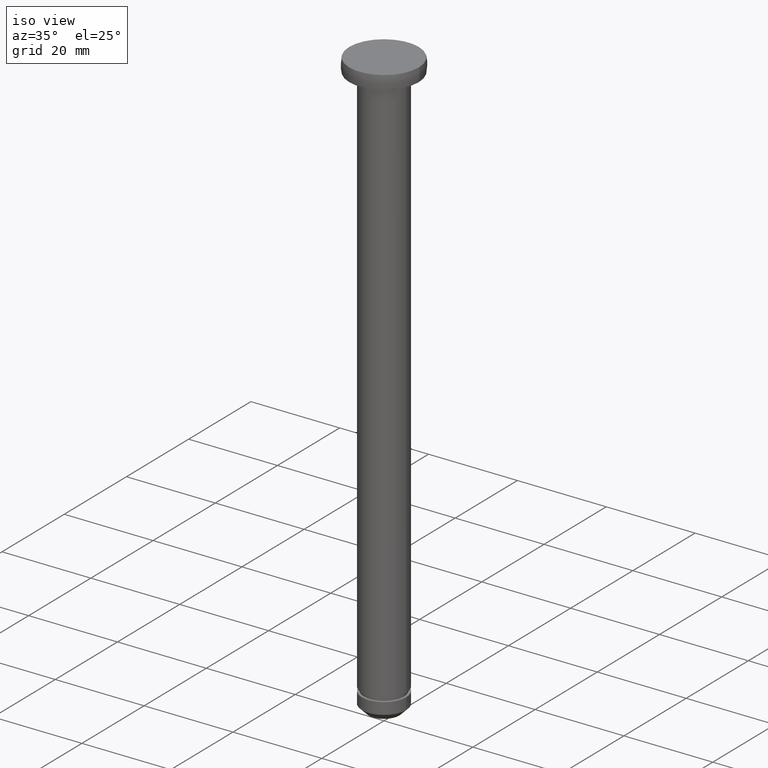
[diagram: clean part render]
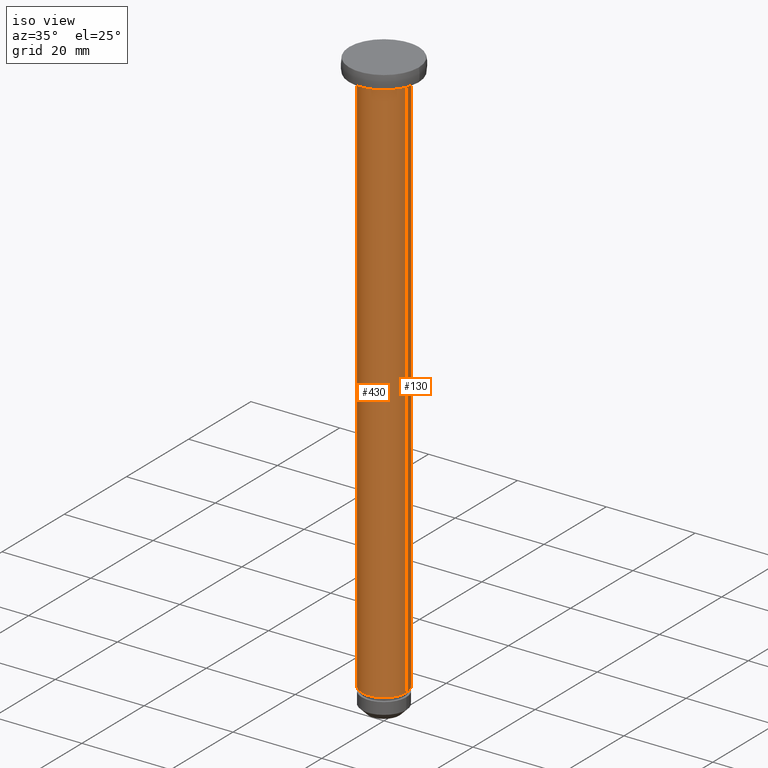
[diagram: same view with one multi-face feature highlighted, each face labeled with its STEP entity id]
A machine part, iso view. The highlighted faces form ONE feature: a constant-radius fillet chain: 2 tangent blend faces with common blend radius 5 mm. The faces share edges in the B-rep.
Their STEP definitions:
[1] entity #130 (Cylinder):
#5 = ORIENTED_EDGE ( 'NONE', *, *, #331, .T. ) ;
#10 = CARTESIAN_POINT ( 'NONE',  ( 0.0000000000000000000, 0.0000000000000000000, -3.000000018043495100 ) ) ;
#52 = DIRECTION ( 'NONE',  ( 0.0000000000000000000, 0.0000000000000000000, -1.000000000000000000 ) ) ;
#55 = CARTESIAN_POINT ( 'NONE',  ( -5.000000000000000000, 0.0000000000000000000, -128.0000000360869900 ) ) ;
#92 = CARTESIAN_POINT ( 'NONE',  ( -5.000000000000000000, 0.0000000000000000000, -3.000000018043495100 ) ) ;
#101 = LINE ( 'NONE', #158, #299 ) ;
#130 = ADVANCED_FACE ( 'NONE', ( #286 ), #360, .T. ) ;
#145 = AXIS2_PLACEMENT_3D ( 'NONE', #10, #200, #309 ) ;
#148 = CARTESIAN_POINT ( 'NONE',  ( 5.000000000000000000, 6.123233995736766300E-016, -128.0000000360869900 ) ) ;
#158 = CARTESIAN_POINT ( 'NONE',  ( 5.000000000000000000, 6.123233995736766300E-016, -3.280275378074167100E-014 ) ) ;
#180 = ORIENTED_EDGE ( 'NONE', *, *, #358, .F. ) ;
#181 = CARTESIAN_POINT ( 'NONE',  ( -5.000000000000000000, 0.0000000000000000000, -3.280275378074167100E-014 ) ) ;
#197 = DIRECTION ( 'NONE',  ( 0.0000000000000000000, 0.0000000000000000000, -1.000000000000000000 ) ) ;
#200 = DIRECTION ( 'NONE',  ( 0.0000000000000000000, 0.0000000000000000000, -1.000000000000000000 ) ) ;
#201 = VERTEX_POINT ( 'NONE', #92 ) ;
#207 = LINE ( 'NONE', #181, #341 ) ;
#212 = EDGE_CURVE ( 'NONE', #201, #246, #207, .T. ) ;
#223 = AXIS2_PLACEMENT_3D ( 'NONE', #412, #252, #388 ) ;
#236 = CARTESIAN_POINT ( 'NONE',  ( 5.000000000000000000, 6.123233995736766300E-016, -3.000000018043495100 ) ) ;
#246 = VERTEX_POINT ( 'NONE', #55 ) ;
#252 = DIRECTION ( 'NONE',  ( 0.0000000000000000000, 0.0000000000000000000, -1.000000000000000000 ) ) ;
#271 = EDGE_CURVE ( 'NONE', #353, #384, #101, .T. ) ;
#273 = DIRECTION ( 'NONE',  ( 0.0000000000000000000, 0.0000000000000000000, -1.000000000000000000 ) ) ;
#286 = FACE_OUTER_BOUND ( 'NONE', #359, .T. ) ;
#299 = VECTOR ( 'NONE', #197, 1000.000000000000000 ) ;
#309 = DIRECTION ( 'NONE',  ( -1.000000000000000000, 0.0000000000000000000, 0.0000000000000000000 ) ) ;
#317 = ORIENTED_EDGE ( 'NONE', *, *, #271, .T. ) ;
#331 = EDGE_CURVE ( 'NONE', #201, #353, #425, .T. ) ;
#341 = VECTOR ( 'NONE', #273, 1000.000000000000000 ) ;
#344 = CARTESIAN_POINT ( 'NONE',  ( 0.0000000000000000000, 0.0000000000000000000, -3.280275378074167100E-014 ) ) ;
#353 = VERTEX_POINT ( 'NONE', #236 ) ;
#358 = EDGE_CURVE ( 'NONE', #246, #384, #427, .T. ) ;
#359 = EDGE_LOOP ( 'NONE', ( #5, #317, #180, #383 ) ) ;
#360 = CYLINDRICAL_SURFACE ( 'NONE', #419, 5.000000000000000000 ) ;
#370 = DIRECTION ( 'NONE',  ( -1.000000000000000000, 0.0000000000000000000, 0.0000000000000000000 ) ) ;
#383 = ORIENTED_EDGE ( 'NONE', *, *, #212, .F. ) ;
#384 = VERTEX_POINT ( 'NONE', #148 ) ;
#388 = DIRECTION ( 'NONE',  ( -1.000000000000000000, 0.0000000000000000000, 0.0000000000000000000 ) ) ;
#412 = CARTESIAN_POINT ( 'NONE',  ( 0.0000000000000000000, 0.0000000000000000000, -128.0000000360869900 ) ) ;
#419 = AXIS2_PLACEMENT_3D ( 'NONE', #344, #52, #370 ) ;
#425 = CIRCLE ( 'NONE', #145, 5.000000000000000000 ) ;
#427 = CIRCLE ( 'NONE', #223, 5.000000000000000000 ) ;
[2] entity #430 (Cylinder):
#55 = CARTESIAN_POINT ( 'NONE',  ( -5.000000000000000000, 0.0000000000000000000, -128.0000000360869900 ) ) ;
#67 = CIRCLE ( 'NONE', #272, 5.000000000000000000 ) ;
#75 = ORIENTED_EDGE ( 'NONE', *, *, #271, .F. ) ;
#92 = CARTESIAN_POINT ( 'NONE',  ( -5.000000000000000000, 0.0000000000000000000, -3.000000018043495100 ) ) ;
#101 = LINE ( 'NONE', #158, #299 ) ;
#148 = CARTESIAN_POINT ( 'NONE',  ( 5.000000000000000000, 6.123233995736766300E-016, -128.0000000360869900 ) ) ;
#158 = CARTESIAN_POINT ( 'NONE',  ( 5.000000000000000000, 6.123233995736766300E-016, -3.280275378074167100E-014 ) ) ;
#165 = CARTESIAN_POINT ( 'NONE',  ( 0.0000000000000000000, 0.0000000000000000000, -3.280275378074167100E-014 ) ) ;
#172 = ORIENTED_EDGE ( 'NONE', *, *, #415, .T. ) ;
#178 = DIRECTION ( 'NONE',  ( -1.000000000000000000, 0.0000000000000000000, 0.0000000000000000000 ) ) ;
#181 = CARTESIAN_POINT ( 'NONE',  ( -5.000000000000000000, 0.0000000000000000000, -3.280275378074167100E-014 ) ) ;
#182 = DIRECTION ( 'NONE',  ( -1.000000000000000000, 0.0000000000000000000, 0.0000000000000000000 ) ) ;
#197 = DIRECTION ( 'NONE',  ( 0.0000000000000000000, 0.0000000000000000000, -1.000000000000000000 ) ) ;
#201 = VERTEX_POINT ( 'NONE', #92 ) ;
#207 = LINE ( 'NONE', #181, #341 ) ;
#212 = EDGE_CURVE ( 'NONE', #201, #246, #207, .T. ) ;
#225 = CARTESIAN_POINT ( 'NONE',  ( 0.0000000000000000000, 0.0000000000000000000, -128.0000000360869900 ) ) ;
#236 = CARTESIAN_POINT ( 'NONE',  ( 5.000000000000000000, 6.123233995736766300E-016, -3.000000018043495100 ) ) ;
#246 = VERTEX_POINT ( 'NONE', #55 ) ;
#249 = FACE_OUTER_BOUND ( 'NONE', #400, .T. ) ;
#253 = DIRECTION ( 'NONE',  ( 0.0000000000000000000, 0.0000000000000000000, -1.000000000000000000 ) ) ;
#271 = EDGE_CURVE ( 'NONE', #353, #384, #101, .T. ) ;
#272 = AXIS2_PLACEMENT_3D ( 'NONE', #225, #323, #182 ) ;
#273 = DIRECTION ( 'NONE',  ( 0.0000000000000000000, 0.0000000000000000000, -1.000000000000000000 ) ) ;
#289 = DIRECTION ( 'NONE',  ( 0.0000000000000000000, 0.0000000000000000000, -1.000000000000000000 ) ) ;
#299 = VECTOR ( 'NONE', #197, 1000.000000000000000 ) ;
#303 = DIRECTION ( 'NONE',  ( -1.000000000000000000, 0.0000000000000000000, 0.0000000000000000000 ) ) ;
#323 = DIRECTION ( 'NONE',  ( 0.0000000000000000000, 0.0000000000000000000, -1.000000000000000000 ) ) ;
#326 = AXIS2_PLACEMENT_3D ( 'NONE', #434, #289, #303 ) ;
#341 = VECTOR ( 'NONE', #273, 1000.000000000000000 ) ;
#347 = CYLINDRICAL_SURFACE ( 'NONE', #447, 5.000000000000000000 ) ;
#353 = VERTEX_POINT ( 'NONE', #236 ) ;
#367 = ORIENTED_EDGE ( 'NONE', *, *, #212, .T. ) ;
#374 = CIRCLE ( 'NONE', #326, 5.000000000000000000 ) ;
#384 = VERTEX_POINT ( 'NONE', #148 ) ;
#397 = EDGE_CURVE ( 'NONE', #384, #246, #67, .T. ) ;
#400 = EDGE_LOOP ( 'NONE', ( #75, #172, #367, #443 ) ) ;
#415 = EDGE_CURVE ( 'NONE', #353, #201, #374, .T. ) ;
#430 = ADVANCED_FACE ( 'NONE', ( #249 ), #347, .T. ) ;
#434 = CARTESIAN_POINT ( 'NONE',  ( 0.0000000000000000000, 0.0000000000000000000, -3.000000018043495100 ) ) ;
#443 = ORIENTED_EDGE ( 'NONE', *, *, #397, .F. ) ;
#447 = AXIS2_PLACEMENT_3D ( 'NONE', #165, #253, #178 ) ;